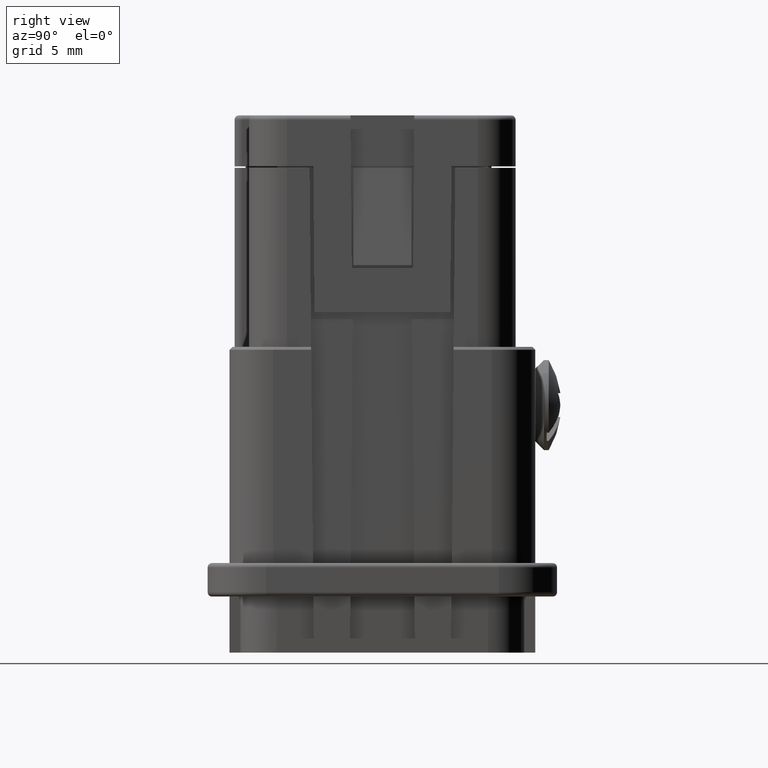
[diagram: clean part render]
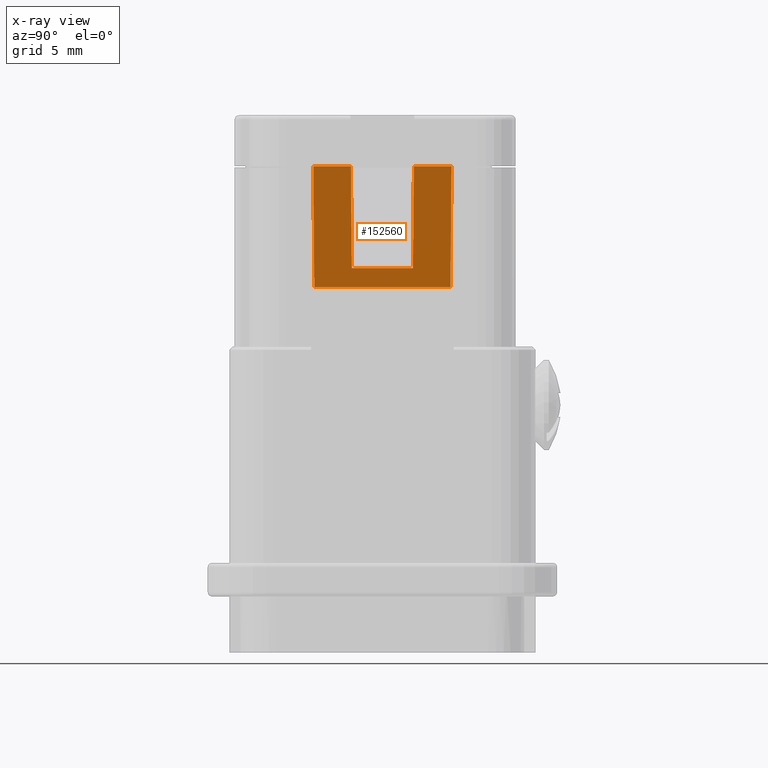
[diagram: x-ray — body ghosted, one internal face saturated and labeled with its STEP entity id]
A machine part, right view, then the same camera in x-ray: the body is ghosted and one INTERNAL B-rep face — a face not visible from any outside direction — is saturated and labeled: STEP entity #152560.
In plain terms, the highlighted planar face has unit normal (-1, 0, 0).
Its self-contained STEP definition (entity closure, byte-faithful):
#136010=CARTESIAN_POINT('',(38.734245,53.4664580800856,44.6013845458853)
);
#136020=VERTEX_POINT('',#136010);
#136070=CARTESIAN_POINT('',(38.734245,53.538879,52.9));
#136080=DIRECTION('',(0.,0.0087265354983736,0.999961923064171));
#136090=VECTOR('',#136080,1.);
#136100=LINE('',#136070,#136090);
#136110=CARTESIAN_POINT('',(38.734245,53.538879,52.9));
#136120=VERTEX_POINT('',#136110);
#136130=EDGE_CURVE('',#136020,#136120,#136100,.T.);
#151940=CARTESIAN_POINT('',(38.734245,52.968338,50.4547059999999));
#151950=DIRECTION('',(-1.,0.,0.));
#151960=DIRECTION('',(0.,1.,1.46757606067638E-15));
#151970=AXIS2_PLACEMENT_3D('',#151940,#151950,#151960);
#151980=PLANE('',#151970);
#151990=CARTESIAN_POINT('',(38.734245,44.038879,52.9));
#152000=DIRECTION('',(0.,0.00872653549837427,-0.999961923064171));
#152010=VECTOR('',#152000,1.);
#152020=LINE('',#151990,#152010);
#152030=CARTESIAN_POINT('',(38.734245,44.038879,52.9));
#152040=VERTEX_POINT('',#152030);
#152050=CARTESIAN_POINT('',(38.734245,44.1112999199144,44.6013845458853)
);
#152060=VERTEX_POINT('',#152050);
#152070=EDGE_CURVE('',#152040,#152060,#152020,.T.);
#152080=ORIENTED_EDGE('',*,*,#152070,.T.);
#152090=CARTESIAN_POINT('',(38.734245,57.2776209965136,52.9));
#152100=DIRECTION('',(0.,1.,1.11022302462516E-16));
#152110=VECTOR('',#152100,1.);
#152120=LINE('',#152090,#152110);
#152130=CARTESIAN_POINT('',(38.734245,46.6277909254647,52.9));
#152140=VERTEX_POINT('',#152130);
#152150=EDGE_CURVE('',#152040,#152140,#152120,.T.);
#152160=ORIENTED_EDGE('',*,*,#152150,.F.);
#152170=CARTESIAN_POINT('',(38.734245,46.6277909254647,52.9));
#152180=DIRECTION('',(0.,-0.0087265354983754,0.999961923064171));
#152190=VECTOR('',#152180,1.);
#152200=LINE('',#152170,#152190);
#152210=CARTESIAN_POINT('',(38.734245,46.688879,45.9));
#152220=VERTEX_POINT('',#152210);
#152230=EDGE_CURVE('',#152220,#152140,#152200,.T.);
#152240=ORIENTED_EDGE('',*,*,#152230,.T.);
#152250=CARTESIAN_POINT('',(38.734245,51.488879,45.9));
#152260=DIRECTION('',(0.,-1.,-1.46757606067638E-15));
#152270=VECTOR('',#152260,1.);
#152280=LINE('',#152250,#152270);
#152290=CARTESIAN_POINT('',(38.734245,50.888879,45.9));
#152300=VERTEX_POINT('',#152290);
#152310=EDGE_CURVE('',#152300,#152220,#152280,.T.);
#152320=ORIENTED_EDGE('',*,*,#152310,.T.);
#152330=CARTESIAN_POINT('',(38.734245,50.9499670745353,52.9));
#152340=DIRECTION('',(0.,-0.00872653549837247,-0.999961923064171));
#152350=VECTOR('',#152340,1.);
#152360=LINE('',#152330,#152350);
#152370=CARTESIAN_POINT('',(38.734245,50.9499670745353,52.9));
#152380=VERTEX_POINT('',#152370);
#152390=EDGE_CURVE('',#152380,#152300,#152360,.T.);
#152400=ORIENTED_EDGE('',*,*,#152390,.T.);
#152410=CARTESIAN_POINT('',(38.734245,57.2776209965136,52.9));
#152420=DIRECTION('',(0.,1.,1.11022302462516E-16));
#152430=VECTOR('',#152420,1.);
#152440=LINE('',#152410,#152430);
#152450=EDGE_CURVE('',#152380,#136120,#152440,.T.);
#152460=ORIENTED_EDGE('',*,*,#152450,.F.);
#152470=ORIENTED_EDGE('',*,*,#136130,.T.);
#152480=CARTESIAN_POINT('',(38.734245,48.788879,44.6013845458853));
#152490=DIRECTION('',(0.,1.,1.46757606067638E-15));
#152500=VECTOR('',#152490,1.);
#152510=LINE('',#152480,#152500);
#152520=EDGE_CURVE('',#152060,#136020,#152510,.T.);
#152530=ORIENTED_EDGE('',*,*,#152520,.T.);
#152540=EDGE_LOOP('',(#152530,#152470,#152460,#152400,#152320,#152240,
#152160,#152080));
#152550=FACE_OUTER_BOUND('',#152540,.T.);
#152560=ADVANCED_FACE('',(#152550),#151980,.F.);